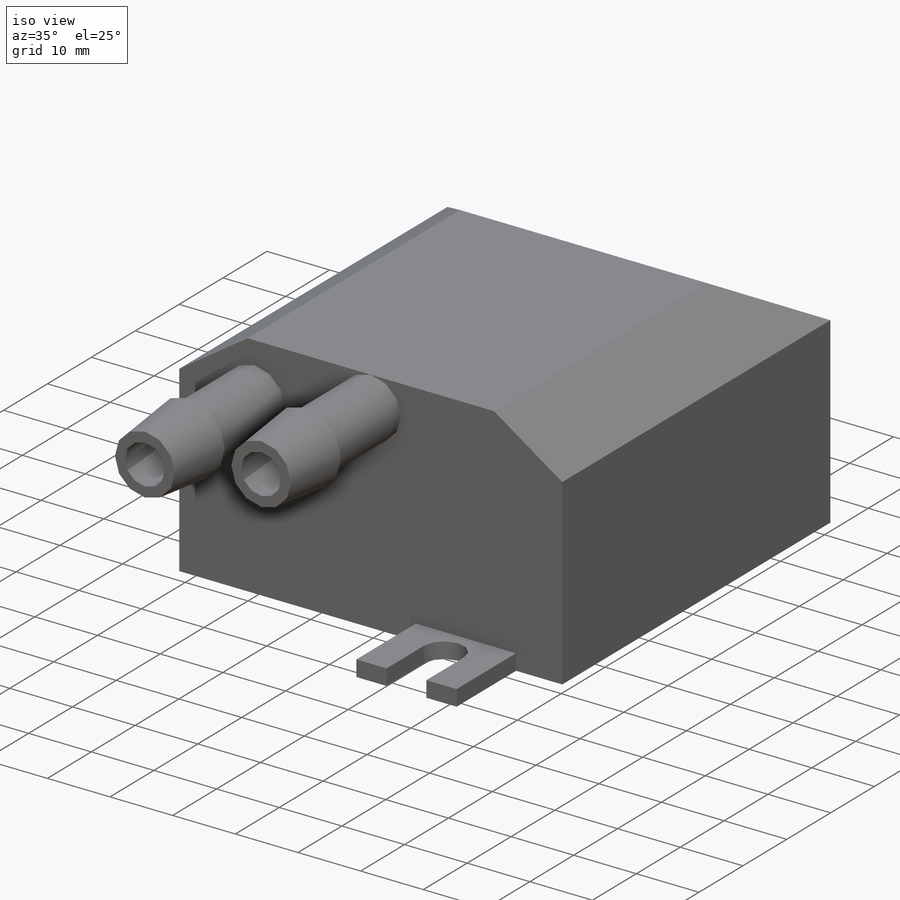
[diagram: iso view]
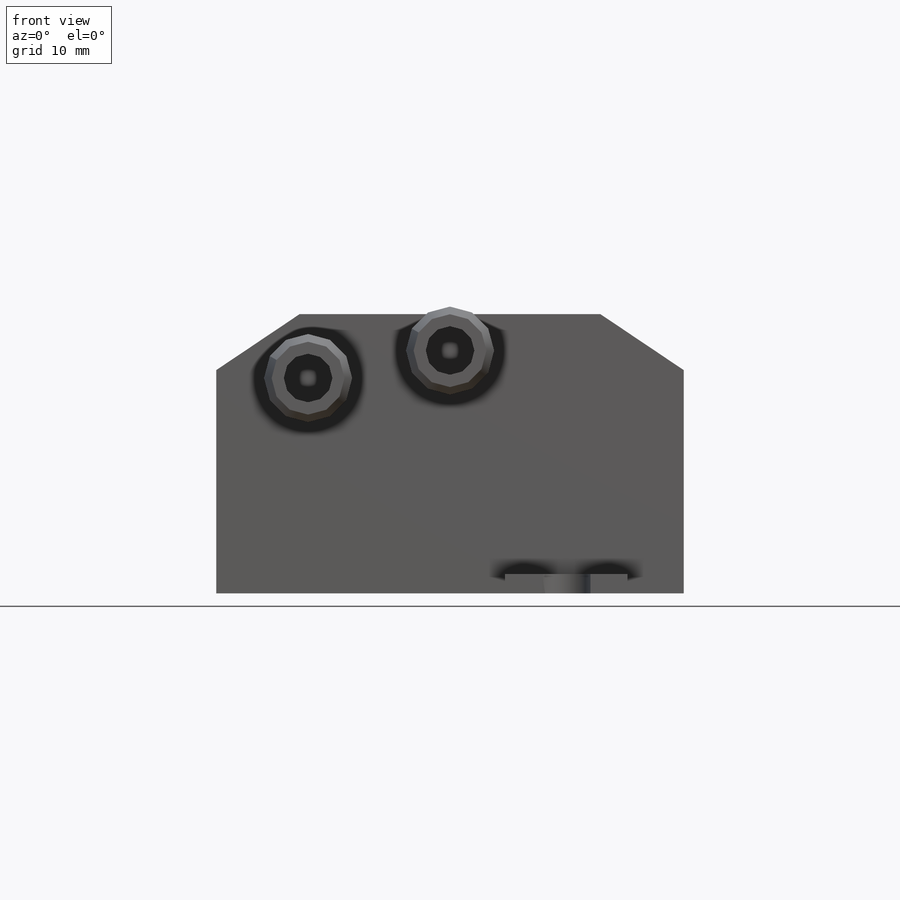
[diagram: front view]
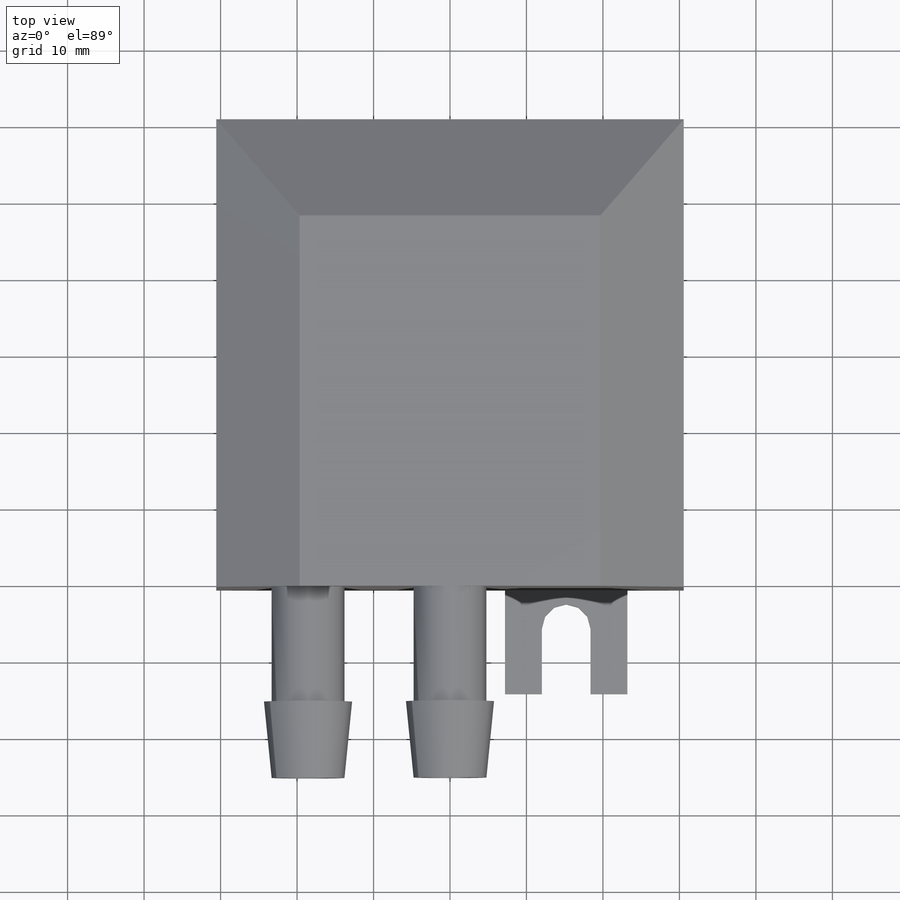
[diagram: top view]
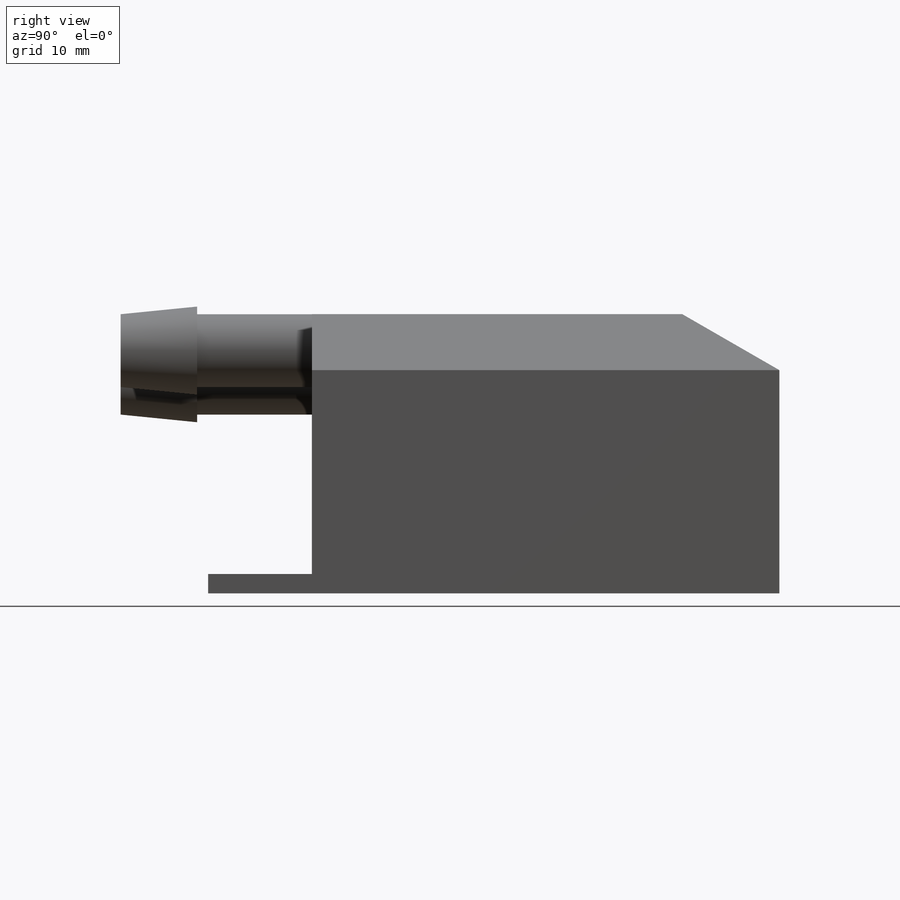
[diagram: right view]
SOLIDWORKS PART (.sldprt)
format: sldprt  version: not decoded by parser v0  size: 275,968 bytes
history: native  units: mm
features: sketch x10, extrude x5, cut_extrude x2, material x1, cut_revolve x1, revolve x1 (+11 scaffold rows collapsed)
feature tree (31):
  scaffold x11  (default folders/planes/origin — collapsed)
  material  "Material <not specified>"
  sketch  "Sketch1"  dims[D1=~61.11875mm D2=~30.559375mm D3=~61.11875mm D4=~30.559375mm]
  extrude  "Extrude1"  Depth=36.5125mm
  sketch  "Sketch3"
  cut_extrude  "Cut-Extrude7"  Depth=62mm
  sketch  "Sketch4"
  cut_extrude  "Cut-Extrude8"  Depth=250mm
  sketch  "Sketch2"  dims[D1=9.525mm]
  extrude  "Extrude2"  Depth=25mm
  sketch  "Sketch5"  dims[c1.D1=~4.197146mm c1.D2=4.2mm c2.D1=12.0mm]
  extrude  "Extrude3"  Depth=25mm
  sketch  "Sketch6"  dims[c1.D1=74.676mm c1.D2=74.676mm c1.D3=16.002mm c1.D4=16.002mm c1.D5=23.368mm c1.D6=23.368mm c2.D1=6.35mm c2.D2=6.35mm c2.D7=4.826mm c2.D8=4.826mm]
  extrude  "Extrude4"  Depth=2.54mm
  sketch  "Sketch7"  dims[D1=~5.541702mm]
  extrude  "Extrude5"  Depth=10mm
  sketch  "Sketch8"  dims[D1=1.0mm]
  cut_revolve  "Cut-Revolve2"  Angle=360deg
  sketch  "3DSketch1"  dims[c1.D2=~0.987769mm c1.D3=1.0mm c2.D3=~4.76371mm c2.D1=12.0mm]
  sketch  "Sketch10"  dims[D1=1.0mm]
  revolve  "Revolve1"  Angle=360deg
decode coverage: 17 of 19 modeling features carry decoded parameters
note: ~ marks probable driven/reference dimensions
note: suppression state not decoded; provenance and decode notes live in map.json
